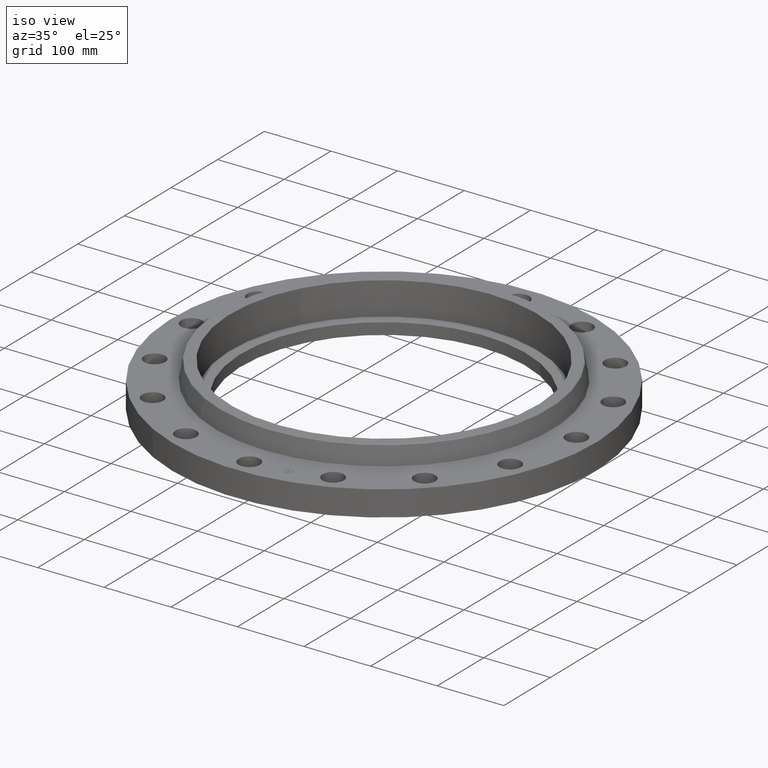
[diagram: clean part render]
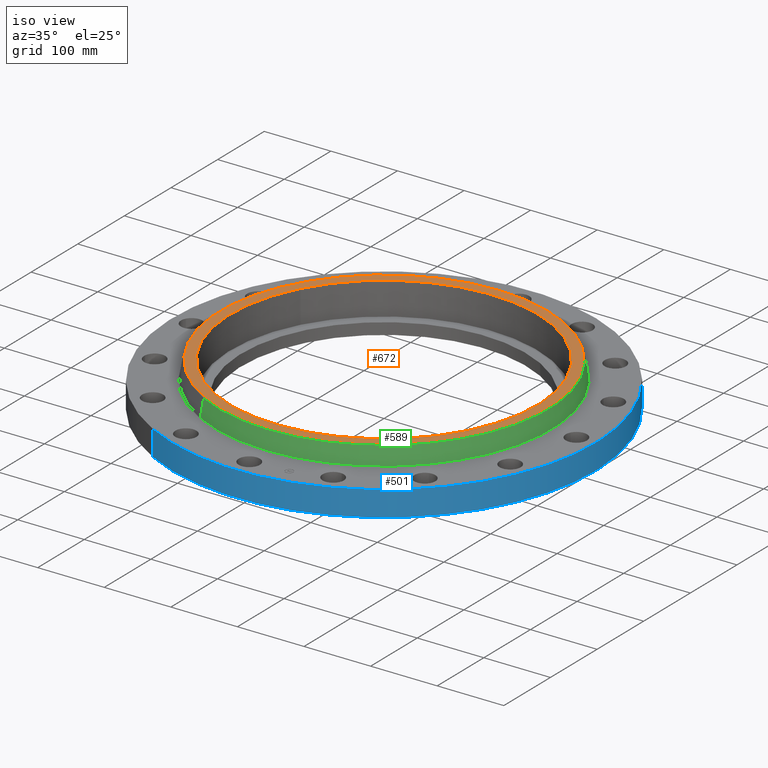
[diagram: same view with three faces highlighted in distinct colors, each labeled with its STEP entity id]
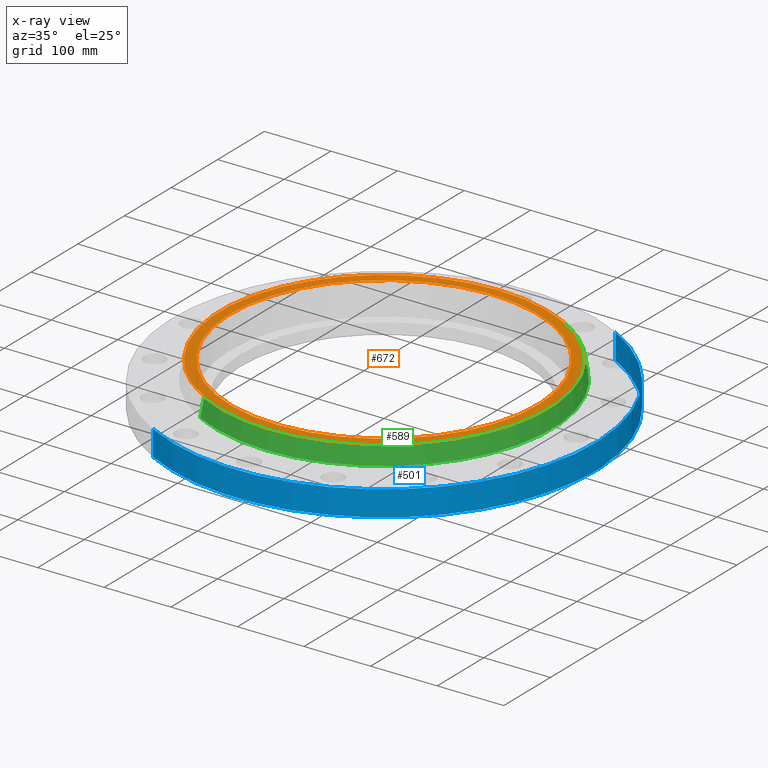
[diagram: x-ray of the same camera — body ghosted, the three highlighted faces saturated]
A machine part, iso view with three faces highlighted in distinct colors.
The next image is the same camera in x-ray (body ghosted, the three faces saturated) — at least one of them is partly hidden behind the body in this view.
Their STEP definitions:

[orange] entity #672 — the highlighted planar face has unit normal (0, 0, -1).
#616=AXIS2_PLACEMENT_3D('Circle Axis2P3D',#614,#615,$) ;
#635=AXIS2_PLACEMENT_3D('Circle Axis2P3D',#633,#634,$) ;
#648=AXIS2_PLACEMENT_3D('Plane Axis2P3D',#645,#646,#647) ;
#656=AXIS2_PLACEMENT_3D('Circle Axis2P3D',#654,#655,$) ;
#665=AXIS2_PLACEMENT_3D('Circle Axis2P3D',#663,#664,$) ;
#611=CARTESIAN_POINT('Vertex',(4.64667276957,8.50567745151,2.62000000001)) ;
#614=CARTESIAN_POINT('Axis2P3D Location',(0.,0.,2.62000000001)) ;
#618=CARTESIAN_POINT('Vertex',(-4.64667276957,-8.50567745151,2.62000000001)) ;
#633=CARTESIAN_POINT('Axis2P3D Location',(0.,0.,2.62000000001)) ;
#645=CARTESIAN_POINT('Axis2P3D Location',(0.,9.69216780377,2.62000000001)) ;
#654=CARTESIAN_POINT('Axis2P3D Location',(2.79741234551E-016,-1.1189649382E-015,2.62000000001)) ;
#658=CARTESIAN_POINT('Vertex',(-7.97722548762,4.35797814593,2.62000000001)) ;
#660=CARTESIAN_POINT('Vertex',(7.97722548762,-4.35797814593,2.62000000001)) ;
#663=CARTESIAN_POINT('Axis2P3D Location',(2.79741234551E-016,0.,2.62000000001)) ;
#615=DIRECTION('Axis2P3D Direction',(0.,0.,-0.0393700787402)) ;
#634=DIRECTION('Axis2P3D Direction',(0.,0.,-0.0393700787402)) ;
#646=DIRECTION('Axis2P3D Direction',(0.,0.,-0.0393700787402)) ;
#647=DIRECTION('Axis2P3D XDirection',(0.0393700787402,0.,0.)) ;
#655=DIRECTION('Axis2P3D Direction',(0.,0.,-0.0393700787402)) ;
#664=DIRECTION('Axis2P3D Direction',(0.,0.,-0.0393700787402)) ;
#651=ORIENTED_EDGE('',*,*,#620,.F.) ;
#652=ORIENTED_EDGE('',*,*,#637,.F.) ;
#669=ORIENTED_EDGE('',*,*,#662,.T.) ;
#670=ORIENTED_EDGE('',*,*,#667,.T.) ;
#671=FACE_BOUND('',#668,.T.) ;
#672=ADVANCED_FACE('PartBody',(#653,#671),#649,.F.) ;
#617=CIRCLE('generated circle',#616,9.69216780377) ;
#636=CIRCLE('generated circle',#635,9.69216780377) ;
#657=CIRCLE('generated circle',#656,9.09000000004) ;
#666=CIRCLE('generated circle',#665,9.09000000004) ;
#620=EDGE_CURVE('',#612,#619,#617,.T.) ;
#637=EDGE_CURVE('',#619,#612,#636,.T.) ;
#662=EDGE_CURVE('',#659,#661,#657,.T.) ;
#667=EDGE_CURVE('',#661,#659,#666,.T.) ;
#650=EDGE_LOOP('',(#651,#652)) ;
#668=EDGE_LOOP('',(#669,#670)) ;
#653=FACE_OUTER_BOUND('',#650,.T.) ;
#649=PLANE('',#648) ;
#612=VERTEX_POINT('',#611) ;
#619=VERTEX_POINT('',#618) ;
#659=VERTEX_POINT('',#658) ;
#661=VERTEX_POINT('',#660) ;

[blue] entity #501 — the highlighted cylindrical surface (partial cylindrical patch) has radius 317.5 mm, axis along (0, 0, -1).
#159=AXIS2_PLACEMENT_3D('Circle Axis2P3D',#157,#158,$) ;
#462=AXIS2_PLACEMENT_3D('Cylinder Axis2P3D',#459,#460,#461) ;
#492=AXIS2_PLACEMENT_3D('Circle Axis2P3D',#490,#491,$) ;
#152=CARTESIAN_POINT('Vertex',(-5.99281923258,-10.9697820237,1.39870617276E-015)) ;
#154=CARTESIAN_POINT('Vertex',(5.99281923258,10.9697820237,1.39870617276E-015)) ;
#157=CARTESIAN_POINT('Axis2P3D Location',(0.,0.,0.)) ;
#459=CARTESIAN_POINT('Axis2P3D Location',(0.,0.,1.31000000001)) ;
#464=CARTESIAN_POINT('Line Origine',(-5.99281923258,-10.9697820237,0.750000000003)) ;
#468=CARTESIAN_POINT('Vertex',(-5.99281923258,-10.9697820237,1.50000000001)) ;
#475=CARTESIAN_POINT('Vertex',(5.99281923258,10.9697820237,1.50000000001)) ;
#478=CARTESIAN_POINT('Line Origine',(5.99281923258,10.9697820237,0.750000000003)) ;
#490=CARTESIAN_POINT('Axis2P3D Location',(0.,0.,1.50000000001)) ;
#158=DIRECTION('Axis2P3D Direction',(0.,0.,-0.0393700787402)) ;
#460=DIRECTION('Axis2P3D Direction',(0.,0.,-0.0393700787402)) ;
#461=DIRECTION('Axis2P3D XDirection',(0.0188750212049,0.0345504945626,0.)) ;
#465=DIRECTION('Vector Direction',(0.,0.,-0.0393700787402)) ;
#479=DIRECTION('Vector Direction',(0.,0.,-0.0393700787402)) ;
#491=DIRECTION('Axis2P3D Direction',(0.,0.,-0.0393700787402)) ;
#466=VECTOR('Line Direction',#465,0.0393700787402) ;
#480=VECTOR('Line Direction',#479,0.0393700787402) ;
#496=ORIENTED_EDGE('',*,*,#161,.F.) ;
#497=ORIENTED_EDGE('',*,*,#482,.T.) ;
#498=ORIENTED_EDGE('',*,*,#494,.T.) ;
#499=ORIENTED_EDGE('',*,*,#470,.F.) ;
#501=ADVANCED_FACE('PartBody',(#500),#463,.T.) ;
#160=CIRCLE('generated circle',#159,12.5000000001) ;
#493=CIRCLE('generated circle',#492,12.5000000001) ;
#463=CYLINDRICAL_SURFACE('generated cylinder',#462,12.5000000001) ;
#161=EDGE_CURVE('',#155,#153,#160,.T.) ;
#470=EDGE_CURVE('',#153,#469,#467,.F.) ;
#482=EDGE_CURVE('',#155,#476,#481,.F.) ;
#494=EDGE_CURVE('',#476,#469,#493,.T.) ;
#495=EDGE_LOOP('',(#496,#497,#498,#499)) ;
#500=FACE_OUTER_BOUND('',#495,.T.) ;
#467=LINE('Line',#464,#466) ;
#481=LINE('Line',#478,#480) ;
#153=VERTEX_POINT('',#152) ;
#155=VERTEX_POINT('',#154) ;
#469=VERTEX_POINT('',#468) ;
#476=VERTEX_POINT('',#475) ;

[green] entity #589 — the highlighted conical surface has half-angle 10 deg.
#525=AXIS2_PLACEMENT_3D('Circle Axis2P3D',#523,#524,$) ;
#562=AXIS2_PLACEMENT_3D('Cone Axis2P3D',#559,#560,#561) ;
#573=AXIS2_PLACEMENT_3D('Circle Axis2P3D',#571,#572,$) ;
#520=CARTESIAN_POINT('Vertex',(4.76129848206,8.71549841081,1.54958110935)) ;
#523=CARTESIAN_POINT('Axis2P3D Location',(0.,0.,1.54958110935)) ;
#527=CARTESIAN_POINT('Vertex',(-4.76129848206,-8.71549841081,1.54958110935)) ;
#559=CARTESIAN_POINT('Axis2P3D Location',(0.,0.,2.57041889067)) ;
#564=CARTESIAN_POINT('Line Origine',(4.71814988543,8.63651543449,2.06000000001)) ;
#568=CARTESIAN_POINT('Vertex',(4.67500128881,8.55753245816,2.57041889067)) ;
#571=CARTESIAN_POINT('Axis2P3D Location',(0.,0.,2.57041889067)) ;
#575=CARTESIAN_POINT('Vertex',(-4.67500128881,-8.55753245816,2.57041889067)) ;
#578=CARTESIAN_POINT('Line Origine',(-4.71814988543,-8.63651543449,2.06000000001)) ;
#524=DIRECTION('Axis2P3D Direction',(0.,0.,-0.0393700787402)) ;
#560=DIRECTION('Axis2P3D Direction',(0.,0.,-0.0393700787402)) ;
#561=DIRECTION('Axis2P3D XDirection',(-0.0188750212049,-0.0345504945626,0.)) ;
#565=DIRECTION('Vector Direction',(0.00327761303565,0.00599963041829,-0.03877195878)) ;
#572=DIRECTION('Axis2P3D Direction',(0.,0.,-0.0393700787402)) ;
#579=DIRECTION('Vector Direction',(-0.00327761303565,-0.00599963041829,-0.03877195878)) ;
#566=VECTOR('Line Direction',#565,0.0393700787402) ;
#580=VECTOR('Line Direction',#579,0.0393700787402) ;
#584=ORIENTED_EDGE('',*,*,#529,.F.) ;
#585=ORIENTED_EDGE('',*,*,#570,.T.) ;
#586=ORIENTED_EDGE('',*,*,#577,.T.) ;
#587=ORIENTED_EDGE('',*,*,#582,.F.) ;
#589=ADVANCED_FACE('PartBody',(#588),#563,.T.) ;
#526=CIRCLE('generated circle',#525,9.93125751273) ;
#574=CIRCLE('generated circle',#573,9.75125626896) ;
#563=CONICAL_SURFACE('Cone',#562,9.75125626896,0.174532925199) ;
#529=EDGE_CURVE('',#521,#528,#526,.T.) ;
#570=EDGE_CURVE('',#521,#569,#567,.F.) ;
#577=EDGE_CURVE('',#569,#576,#574,.T.) ;
#582=EDGE_CURVE('',#528,#576,#581,.F.) ;
#583=EDGE_LOOP('',(#584,#585,#586,#587)) ;
#588=FACE_OUTER_BOUND('',#583,.T.) ;
#567=LINE('Line',#564,#566) ;
#581=LINE('Line',#578,#580) ;
#521=VERTEX_POINT('',#520) ;
#528=VERTEX_POINT('',#527) ;
#569=VERTEX_POINT('',#568) ;
#576=VERTEX_POINT('',#575) ;